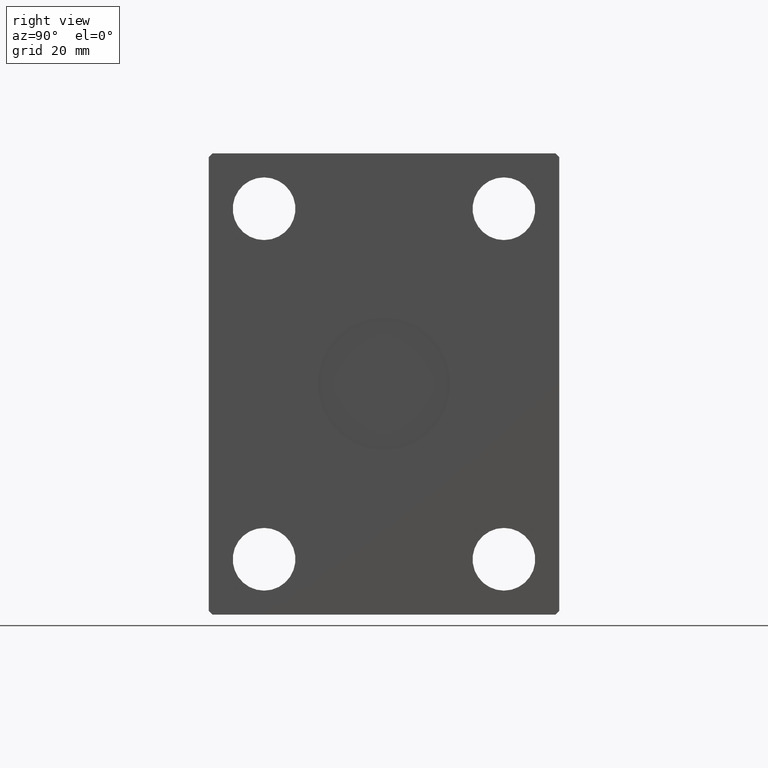
[diagram: clean part render]
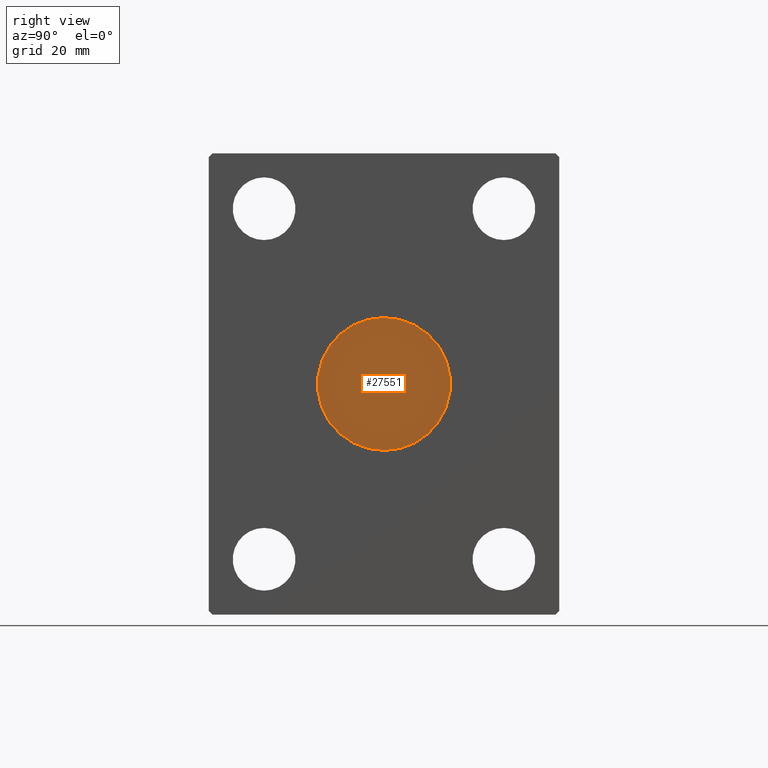
[diagram: same view with one face highlighted and labeled with its STEP entity id]
A machine part, right view. The second image highlights one B-rep face of the part: STEP entity #27551.
In plain terms, the highlighted planar face has unit normal (1, 0, 0).
Its self-contained STEP definition (entity closure, byte-faithful):
#525 = VERTEX_POINT ( 'NONE', #12111 ) ;
#6619 = AXIS2_PLACEMENT_3D ( 'NONE', #7911, #37995, #17799 ) ;
#7911 = CARTESIAN_POINT ( 'NONE',  ( 120.7999999999999972, 0.000000000000000000, 0.000000000000000000 ) ) ;
#9188 = AXIS2_PLACEMENT_3D ( 'NONE', #25685, #28715, #34737 ) ;
#11950 = PLANE ( 'NONE',  #9188 ) ;
#12111 = CARTESIAN_POINT ( 'NONE',  ( 120.7999999999999972, 2.204364238465235428E-15, 18.00000000000000000 ) ) ;
#14297 = CARTESIAN_POINT ( 'NONE',  ( 120.7999999999999972, 0.000000000000000000, -18.00000000000000000 ) ) ;
#14769 = VERTEX_POINT ( 'NONE', #14297 ) ;
#16155 = DIRECTION ( 'NONE',  ( 1.000000000000000000, 0.000000000000000000, 0.000000000000000000 ) ) ;
#17799 = DIRECTION ( 'NONE',  ( 0.000000000000000000, 0.000000000000000000, -1.000000000000000000 ) ) ;
#20801 = DIRECTION ( 'NONE',  ( 0.000000000000000000, 0.000000000000000000, -1.000000000000000000 ) ) ;
#23816 = CARTESIAN_POINT ( 'NONE',  ( 120.7999999999999972, 0.000000000000000000, 0.000000000000000000 ) ) ;
#25685 = CARTESIAN_POINT ( 'NONE',  ( 120.7999999999999972, 0.000000000000000000, 0.000000000000000000 ) ) ;
#27551 = ADVANCED_FACE ( 'NONE', ( #37962 ), #11950, .T. ) ;
#28548 = CIRCLE ( 'NONE', #29937, 18.00000000000000000 ) ;
#28715 = DIRECTION ( 'NONE',  ( 1.000000000000000000, 0.000000000000000000, 0.000000000000000000 ) ) ;
#29937 = AXIS2_PLACEMENT_3D ( 'NONE', #23816, #16155, #20801 ) ;
#32155 = ORIENTED_EDGE ( 'NONE', *, *, #38172, .T. ) ;
#34737 = DIRECTION ( 'NONE',  ( 0.000000000000000000, 0.000000000000000000, -1.000000000000000000 ) ) ;
#37022 = EDGE_LOOP ( 'NONE', ( #32155, #42033 ) ) ;
#37054 = EDGE_CURVE ( 'NONE', #525, #14769, #28548, .T. ) ;
#37962 = FACE_OUTER_BOUND ( 'NONE', #37022, .T. ) ;
#37995 = DIRECTION ( 'NONE',  ( 1.000000000000000000, 0.000000000000000000, 0.000000000000000000 ) ) ;
#38172 = EDGE_CURVE ( 'NONE', #14769, #525, #39543, .T. ) ;
#39543 = CIRCLE ( 'NONE', #6619, 18.00000000000000000 ) ;
#42033 = ORIENTED_EDGE ( 'NONE', *, *, #37054, .T. ) ;